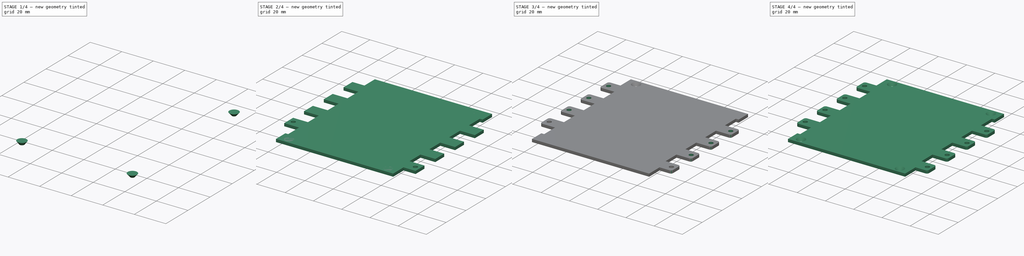
[diagram: build sequence overview — one tinted view per stage of 4, left to right]
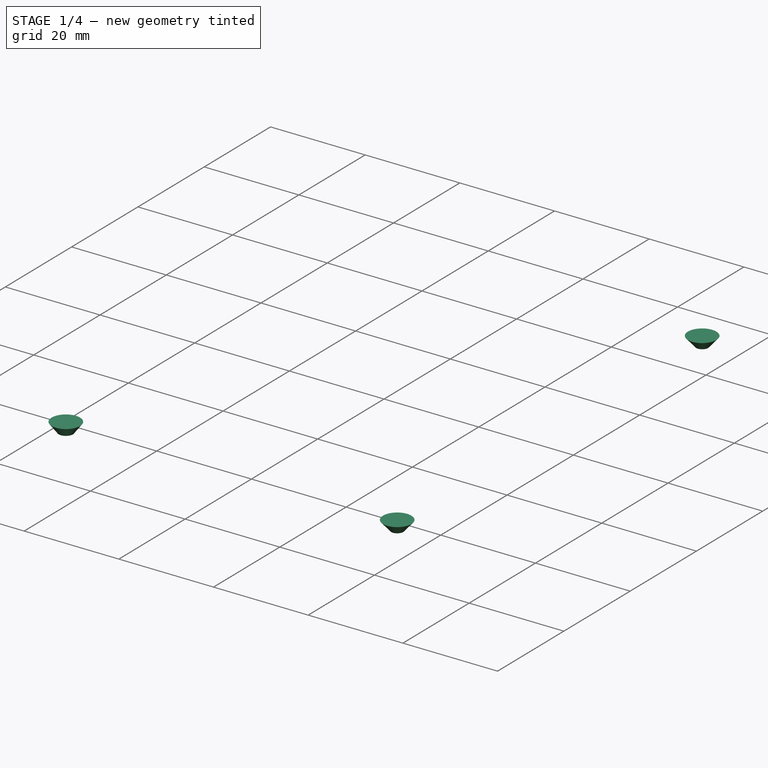
[diagram: stage 1 of 4 — iso view after this stage's code; geometry added in this stage tinted green]
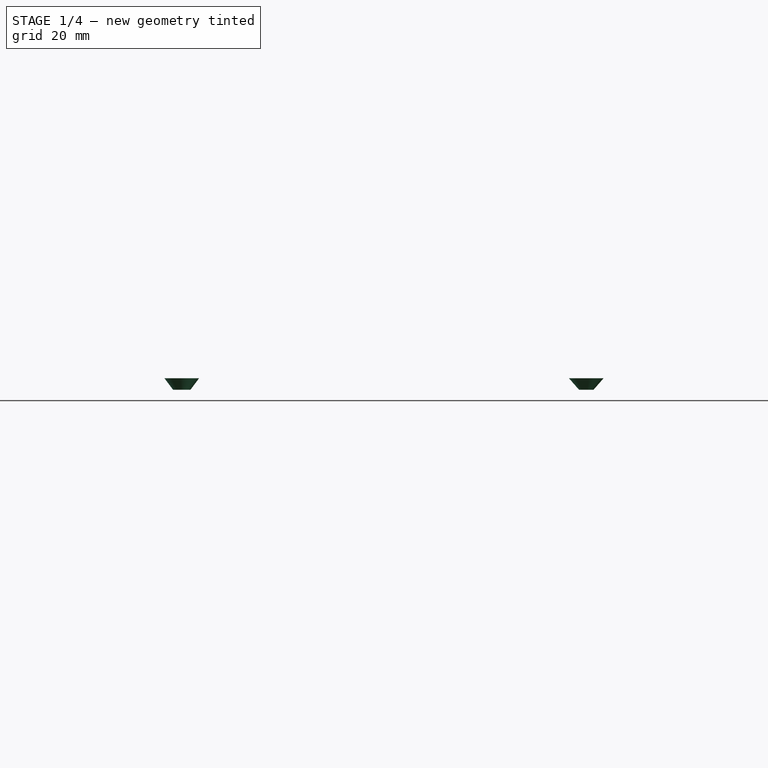
[diagram: stage 1 of 4 — front view after this stage's code; geometry added in this stage tinted green]
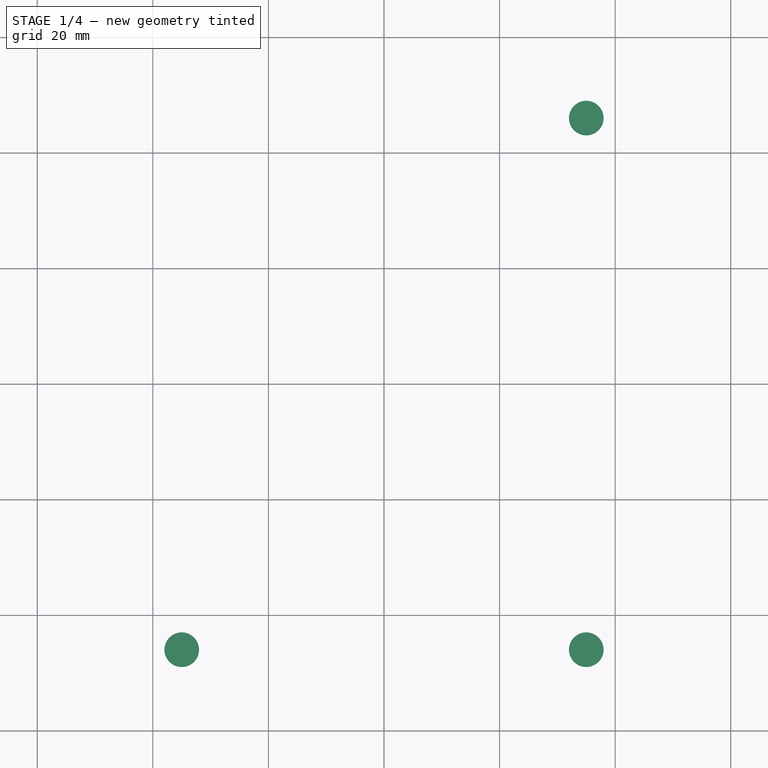
[diagram: stage 1 of 4 — top view after this stage's code; geometry added in this stage tinted green]
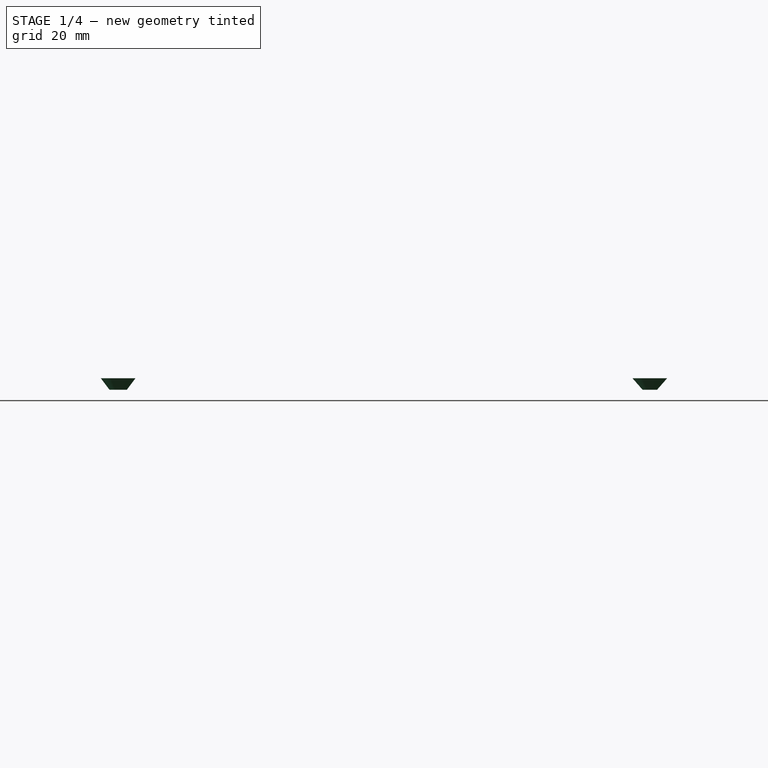
[diagram: stage 1 of 4 — right view after this stage's code; geometry added in this stage tinted green]
FCSTD DOCUMENT  (FreeCAD 0.16R6710 (Git))
Label: pared-fijaciones-tapas
License: All rights reserved
LicenseURL: http://en.wikipedia.org/wiki/All_rights_reserved
objects: Sketcher::SketchObject×10, Part::Loft×4, Part::Cut×4, PartDesign::Pad×1, PartDesign::Pocket×1, PartDesign::LinearPattern×1, Part::Fillet×1
note: 24 computed .brp shape members not serialized (recipe doc carries the construction recipe); baked Part::Feature solids carry a one-line shape summary decoded from their .brp

FEATURE [Sketcher::SketchObject] Sketch004
  sketch-geometry (1):
    g0: Circle CenterX=-35 CenterY=-46 CenterZ=0 NormalX=0 NormalY=0 NormalZ=1 Radius=1.5
  constraints (3):
    c: Radius(g0) = 1.5
    c: DistanceX(g0,g-1) = 35
    c: DistanceY(g0,g-1) = 46
FEATURE [Sketcher::SketchObject] Sketch005
  Placement = pos=(0,0,2) rot=(0,0,1;0rad)
  sketch-geometry (1):
    g0: Circle CenterX=-35 CenterY=-46 CenterZ=0 NormalX=0 NormalY=0 NormalZ=1 Radius=3
  constraints (3):
    c: Radius(g0) = 3
    c: DistanceX(g0,g-1) = 35
    c: DistanceY(g0,g-1) = 46
FEATURE [Part::Loft] Loft001
  Closed = false
  Ruled = true
  Sections = -> [Sketch004,Sketch005]
  Solid = true
FEATURE [Sketcher::SketchObject] Sketch006
  sketch-geometry (1):
    g0: Circle CenterX=35 CenterY=46 CenterZ=0 NormalX=0 NormalY=0 NormalZ=1 Radius=1.25
  constraints (3):
    c: Radius(g0) = 1.25
    c: DistanceX(g-1,g0) = 35
    c: DistanceY(g-1,g0) = 46
FEATURE [Sketcher::SketchObject] Sketch007
  Placement = pos=(0,0,2) rot=(0,0,1;0rad)
  sketch-geometry (1):
    g0: Circle CenterX=35 CenterY=46 CenterZ=0 NormalX=0 NormalY=0 NormalZ=1 Radius=3
  constraints (3):
    c: Radius(g0) = 3
    c: DistanceX(g-1,g0) = 35
    c: DistanceY(g-1,g0) = 46
FEATURE [Part::Loft] Loft002
  Closed = false
  Ruled = true
  Sections = -> [Sketch006,Sketch007]
  Solid = true
FEATURE [Sketcher::SketchObject] Sketch008
  sketch-geometry (1):
    g0: Circle CenterX=35 CenterY=-46 CenterZ=0 NormalX=0 NormalY=0 NormalZ=1 Radius=1.25
  constraints (3):
    c: Radius(g0) = 1.25
    c: DistanceX(g-1,g0) = 35
    c: DistanceY(g0,g-1) = 46
FEATURE [Sketcher::SketchObject] Sketch009
  Placement = pos=(0,0,2) rot=(0,0,1;0rad)
  sketch-geometry (1):
    g0: Circle CenterX=35 CenterY=-46 CenterZ=0 NormalX=0 NormalY=0 NormalZ=1 Radius=3
  constraints (3):
    c: Radius(g0) = 3
    c: DistanceX(g-1,g0) = 35
    c: DistanceY(g0,g-1) = 46
FEATURE [Part::Loft] Loft003
  Closed = false
  Ruled = true
  Sections = -> [Sketch008,Sketch009]
  Solid = true
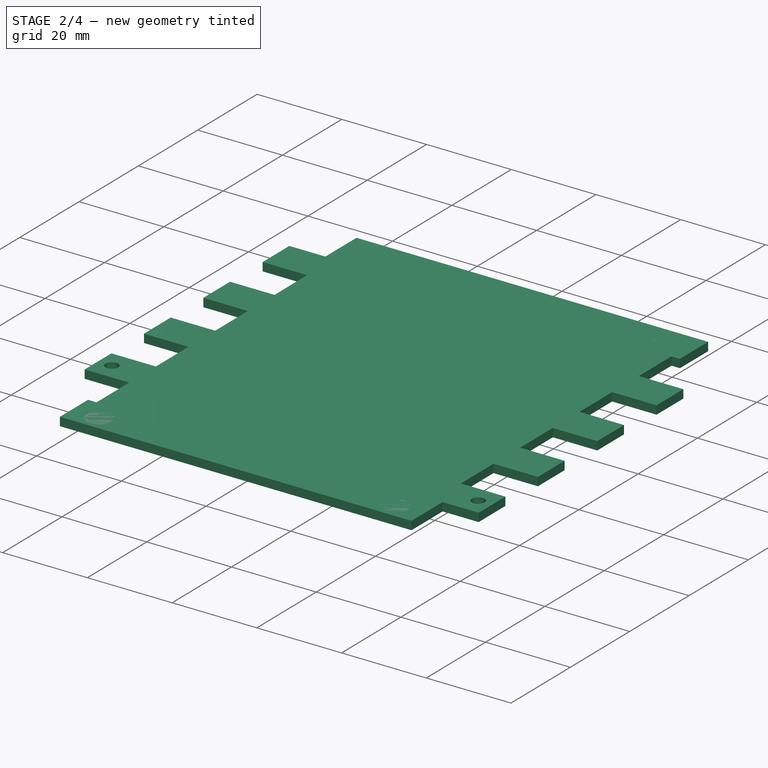
[diagram: stage 2 of 4 — iso view after this stage's code; geometry added in this stage tinted green]
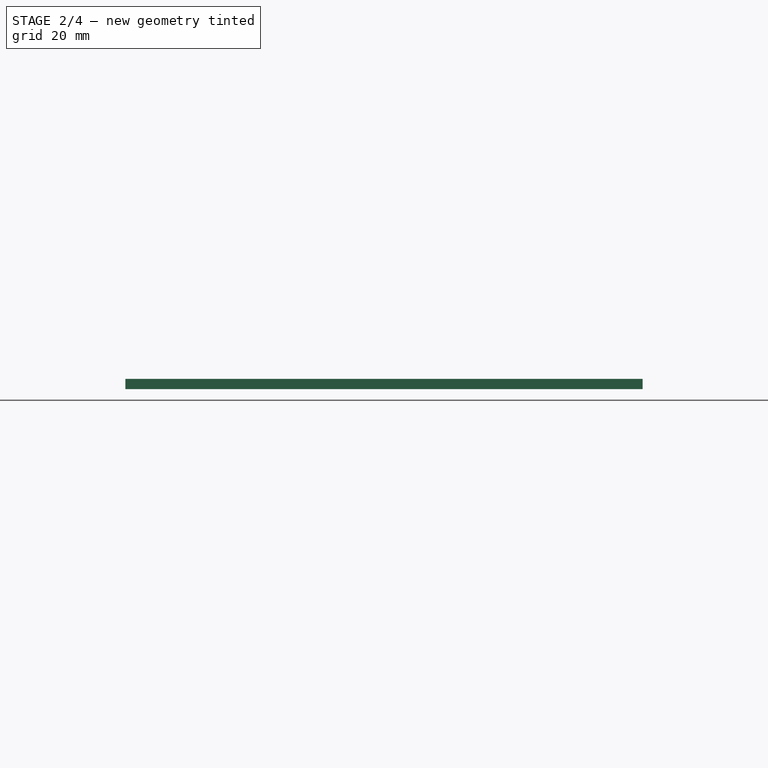
[diagram: stage 2 of 4 — front view after this stage's code; geometry added in this stage tinted green]
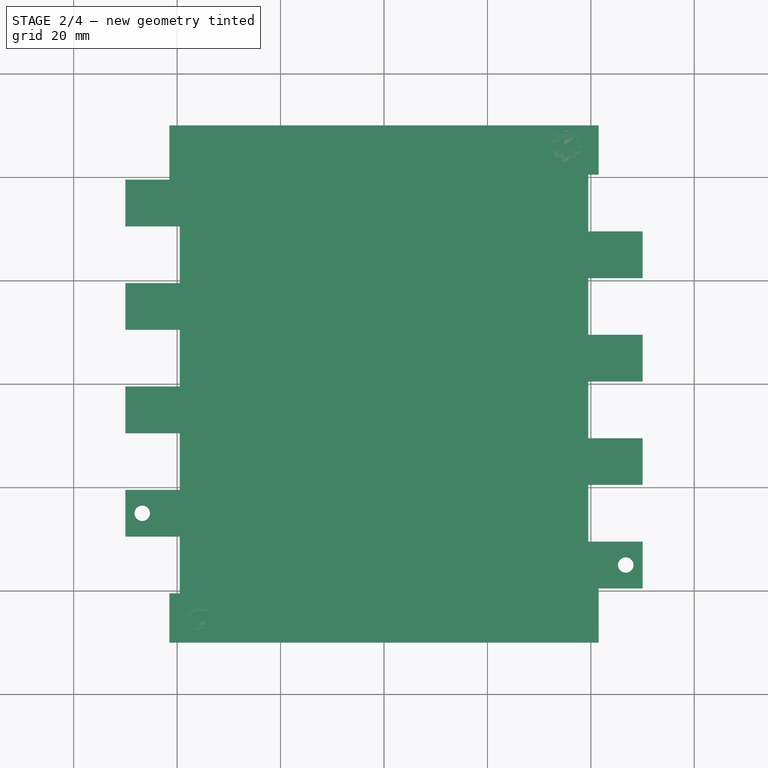
[diagram: stage 2 of 4 — top view after this stage's code; geometry added in this stage tinted green]
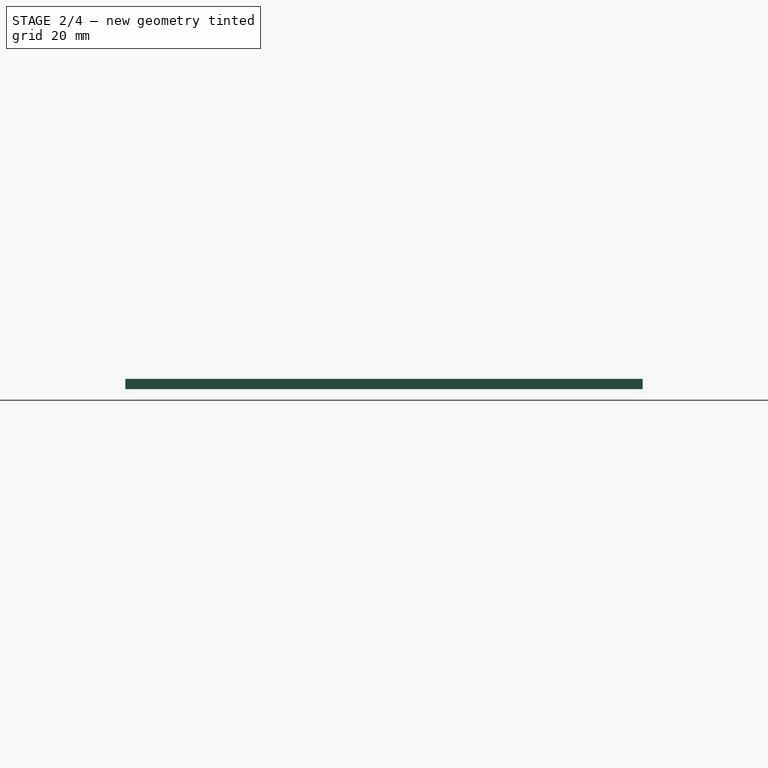
[diagram: stage 2 of 4 — right view after this stage's code; geometry added in this stage tinted green]
FEATURE [Sketcher::SketchObject] Sketch
  sketch-geometry (40):
    g0: LineSegment StartX=-41.5 StartY=-50 StartZ=0 EndX=-41.5 EndY=-40.5 EndZ=0
    g1: LineSegment StartX=-41.5 StartY=-40.5 StartZ=0 EndX=-39.5 EndY=-40.5 EndZ=0
    g2: LineSegment StartX=-39.5 StartY=-40.5 StartZ=0 EndX=-39.5 EndY=-29.5 EndZ=0
    g3: LineSegment StartX=-39.5 StartY=-29.5 StartZ=0 EndX=-50 EndY=-29.5 EndZ=0
    g4: LineSegment StartX=-50 StartY=-29.5 StartZ=0 EndX=-50 EndY=-20.5 EndZ=0
    g5: LineSegment StartX=-50 StartY=-20.5 StartZ=0 EndX=-39.5 EndY=-20.5 EndZ=0
    g6: LineSegment StartX=-39.5 StartY=-20.5 StartZ=0 EndX=-39.5 EndY=-9.5 EndZ=0
    g7: LineSegment StartX=-39.5 StartY=-9.5 StartZ=0 EndX=-50 EndY=-9.5 EndZ=0
    g8: LineSegment StartX=-50 StartY=-9.5 StartZ=0 EndX=-50 EndY=-0.5 EndZ=0
    g9: LineSegment StartX=-50 StartY=-0.5 StartZ=0 EndX=-39.5 EndY=-0.5 EndZ=0
    g10: LineSegment StartX=-39.5 StartY=-0.5 StartZ=0 EndX=-39.5 EndY=10.5 EndZ=0
    g11: LineSegment StartX=-39.5 StartY=10.5 StartZ=0 EndX=-50 EndY=10.5 EndZ=0
    g12: LineSegment StartX=-50 StartY=10.5 StartZ=0 EndX=-50 EndY=19.5 EndZ=0
    g13: LineSegment StartX=-50 StartY=19.5 StartZ=0 EndX=-39.5 EndY=19.5 EndZ=0
    g14: LineSegment StartX=-39.5 StartY=19.5 StartZ=0 EndX=-39.5 EndY=30.5 EndZ=0
    g15: LineSegment StartX=-39.5 StartY=30.5 StartZ=0 EndX=-50 EndY=30.5 EndZ=0
    g16: LineSegment StartX=-50 StartY=30.5 StartZ=0 EndX=-50 EndY=39.5 EndZ=0
    g17: LineSegment StartX=-50 StartY=39.5 StartZ=0 EndX=-41.5 EndY=39.5 EndZ=0
    g18: LineSegment StartX=-41.5 StartY=39.5 StartZ=0 EndX=-41.5 EndY=50 EndZ=0
    g19: LineSegment StartX=41.5 StartY=50 StartZ=0 EndX=41.5 EndY=40.5 EndZ=0
    g20: LineSegment StartX=41.5 StartY=40.5 StartZ=0 EndX=39.5 EndY=40.5 EndZ=0
    g21: LineSegment StartX=39.5 StartY=40.5 StartZ=0 EndX=39.5 EndY=29.5 EndZ=0
    g22: LineSegment StartX=39.5 StartY=29.5 StartZ=0 EndX=50 EndY=29.5 EndZ=0
    g23: LineSegment StartX=50 StartY=29.5 StartZ=0 EndX=50 EndY=20.5 EndZ=0
    g24: LineSegment StartX=50 StartY=20.5 StartZ=0 EndX=39.5 EndY=20.5 EndZ=0
    g25: LineSegment StartX=39.5 StartY=20.5 StartZ=0 EndX=39.5 EndY=9.5 EndZ=0
    g26: LineSegment StartX=39.5 StartY=9.5 StartZ=0 EndX=50 EndY=9.5 EndZ=0
    g27: LineSegment StartX=50 StartY=9.5 StartZ=0 EndX=50 EndY=0.5 EndZ=0
    g28: LineSegment StartX=50 StartY=0.5 StartZ=0 EndX=39.5 EndY=0.5 EndZ=0
    g29: LineSegment StartX=39.5 StartY=0.5 StartZ=0 EndX=39.5 EndY=-10.5 EndZ=0
    g30: LineSegment StartX=39.5 StartY=-10.5 StartZ=0 EndX=50 EndY=-10.5 EndZ=0
    g31: LineSegment StartX=50 StartY=-10.5 StartZ=0 EndX=50 EndY=-19.5 EndZ=0
    g32: LineSegment StartX=50 StartY=-19.5 StartZ=0 EndX=39.5 EndY=-19.5 EndZ=0
    g33: LineSegment StartX=39.5 StartY=-19.5 StartZ=0 EndX=39.5 EndY=-30.5 EndZ=0
    g34: LineSegment StartX=39.5 StartY=-30.5 StartZ=0 EndX=50 EndY=-30.5 EndZ=0
    g35: LineSegment StartX=50 StartY=-30.5 StartZ=0 EndX=50 EndY=-39.5 EndZ=0
    g36: LineSegment StartX=50 StartY=-39.5 StartZ=0 EndX=41.5 EndY=-39.5 EndZ=0
    g37: LineSegment StartX=41.5 StartY=-39.5 StartZ=0 EndX=41.5 EndY=-50 EndZ=0
    g38: LineSegment StartX=-41.5 StartY=-50 StartZ=0 EndX=41.5 EndY=-50 EndZ=0
    g39: LineSegment StartX=-41.5 StartY=50 StartZ=0 EndX=41.5 EndY=50 EndZ=0
  constraints (122):
    c: Vertical(g0)
    c: Coincident(g0,g1)
    c: Coincident(g1,g2)
    c: Vertical(g2)
    c: Coincident(g2,g3)
    c: Horizontal(g3)
    c: Coincident(g3,g4)
    c: Vertical(g4)
    c: Coincident(g4,g5)
    c: Horizontal(g5)
    c: Coincident(g5,g6)
    c: Vertical(g6)
    c: Coincident(g6,g7)
    c: Horizontal(g7)
    c: Coincident(g7,g8)
    c: Vertical(g8)
    c: Coincident(g8,g9)
    c: Horizontal(g9)
    c: Coincident(g9,g10)
    c: Vertical(g10)
    c: Coincident(g10,g11)
    c: Horizontal(g11)
    c: Coincident(g11,g12)
    c: Vertical(g12)
    c: Coincident(g12,g13)
    c: Horizontal(g13)
    c: Coincident(g13,g14)
    c: Vertical(g14)
    c: Coincident(g14,g15)
    c: Horizontal(g15)
    c: Coincident(g15,g16)
    c: Vertical(g16)
    c: Coincident(g16,g17)
    c: Horizontal(g17)
    c: Coincident(g17,g18)
    c: Vertical(g18)
    c: Equal(g2,g6)
    c: Equal(g6,g10)
    c: Equal(g10,g14)
    c: Horizontal(g1)
    c: DistanceY(g2,g2) = 11
    c: DistanceX(g1,g1) = 2
    c: DistanceY(g0,g0) = 9.5
    c: Equal(g4,g8)
    c: Equal(g8,g12)
    c: Equal(g12,g16)
    c: DistanceY(g4,g4) = 9
    c: Equal(g3,g5)
    c: Equal(g5,g7)
    c: Equal(g7,g9)
    c: Equal(g9,g11)
    c: Equal(g11,g13)
    c: Equal(g13,g15)
    c: DistanceX(g3,g3) = 10.5
    c: DistanceX(g17,g17) = 8.5
    c: DistanceY(g18,g18) = 10.5
    c: Vertical(g19)
    c: Coincident(g19,g20)
    c: Coincident(g20,g21)
    c: Vertical(g21)
    c: Coincident(g21,g22)
    c: Horizontal(g22)
    c: Coincident(g22,g23)
    c: Vertical(g23)
    c: Coincident(g23,g24)
    c: Horizontal(g24)
    c: Coincident(g24,g25)
    c: Vertical(g25)
    c: Coincident(g25,g26)
    c: Horizontal(g26)
    c: Coincident(g26,g27)
    c: Vertical(g27)
    c: Coincident(g27,g28)
    c: Horizontal(g28)
    c: Coincident(g28,g29)
    c: Vertical(g29)
    c: Coincident(g29,g30)
    c: Horizontal(g30)
    c: Coincident(g30,g31)
    c: Vertical(g31)
    c: Coincident(g31,g32)
    c: Horizontal(g32)
    c: Coincident(g32,g33)
    c: Vertical(g33)
    c: Coincident(g33,g34)
    c: Horizontal(g34)
    c: Coincident(g34,g35)
    c: Vertical(g35)
    c: Coincident(g35,g36)
    c: Horizontal(g36)
    c: Coincident(g36,g37)
    c: Vertical(g37)
    c: Equal(g21,g25)
    c: Equal(g25,g29)
    c: Equal(g29,g33)
    c: Horizontal(g20)
    c: Equal(g23,g27)
    c: Equal(g27,g31)
    c: Equal(g31,g35)
    c: Equal(g22,g24)
    c: Equal(g24,g26)
    c: Equal(g26,g28)
    c: Equal(g28,g30)
    c: Equal(g30,g32)
    c: Equal(g32,g34)
    c: DistanceY(g37,g37) = 10.5
    c: DistanceX(g36,g36) = 8.5
    c: DistanceY(g35,g35) = 9
    c: DistanceX(g34,g34) = 10.5
    c: DistanceY(g19,g19) = 9.5
    c: DistanceX(g20,g20) = 2
    c: DistanceY(g33,g33) = 11
    c: Horizontal(g38)
    c: Horizontal(g39)
    c: Coincident(g39,g19)
    c: Coincident(g39,g18)
    c: Coincident(g38,g37)
    c: Coincident(g38,g0)
    c: DistanceX(g38,g38) = 83
    c: Equal(g39,g38)
    c: Symmetric(g0,g37,g-2)
    c: Symmetric(g37,g19,g-1)
FEATURE [PartDesign::Pad] Pad
  Length = 2
  Length2 = 100
  Sketch = -> Sketch
  Type = 0
FEATURE [Sketcher::SketchObject] Sketch001
  ExternalGeometry = -> [Pad]
  Placement = pos=(0,0,2) rot=(0,0,1;0rad)
  Support = -> Pad [Face42]
  sketch-geometry (2):
    g0: Circle CenterX=-46.75 CenterY=-25 CenterZ=0 NormalX=0 NormalY=0 NormalZ=1 Radius=1.5
    g1: Circle CenterX=46.75 CenterY=-35 CenterZ=0 NormalX=0 NormalY=0 NormalZ=1 Radius=1.5
  constraints (6):
    c: Radius(g0) = 1.5
    c: DistanceY(g-3,g0) = 4.5
    c: DistanceX(g-3,g0) = 3.25
    c: Equal(g1,g0)
    c: DistanceY(g-4,g1) = 4.5
    c: DistanceX(g1,g-4) = 3.25
FEATURE [PartDesign::Pocket] Pocket
  Length = 5
  Sketch = -> Sketch001
  Type = 1
FEATURE [Sketcher::SketchObject] Sketch002
  sketch-geometry (1):
    g0: Circle CenterX=-35 CenterY=46 CenterZ=0 NormalX=0 NormalY=0 NormalZ=1 Radius=1.5
  constraints (3):
    c: DistanceX(g0,g-1) = 35
    c: DistanceY(g-1,g0) = 46
    c: Radius(g0) = 1.5
FEATURE [Sketcher::SketchObject] Sketch003
  Placement = pos=(0,0,2) rot=(0,0,1;0rad)
  sketch-geometry (1):
    g0: Circle CenterX=-35 CenterY=46 CenterZ=0 NormalX=0 NormalY=0 NormalZ=1 Radius=3
  constraints (3):
    c: Radius(g0) = 3
    c: DistanceX(g0,g-1) = 35
    c: DistanceY(g-1,g0) = 46
FEATURE [Part::Loft] Loft
  Closed = false
  Ruled = true
  Sections = -> [Sketch002,Sketch003]
  Solid = true
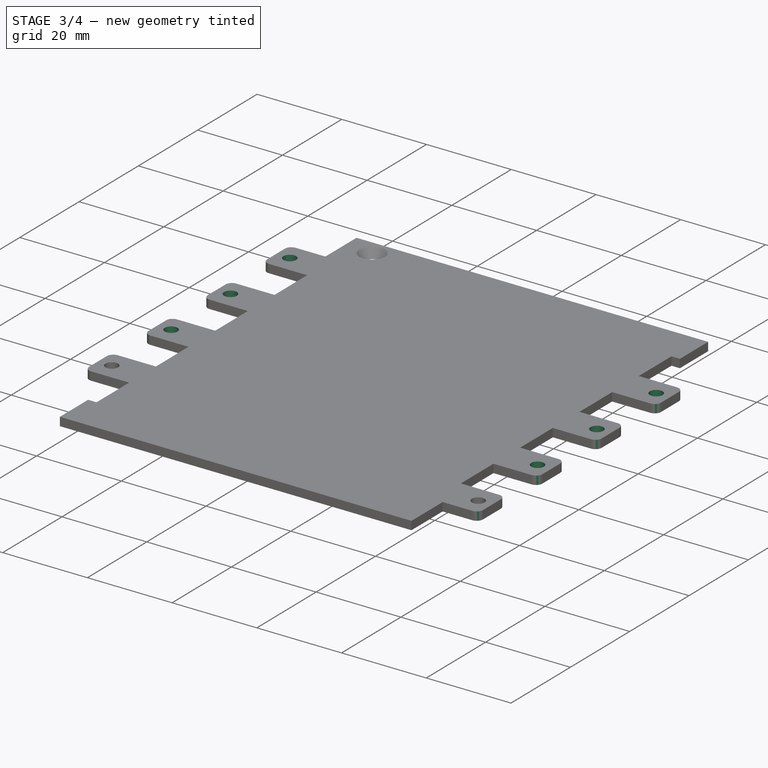
[diagram: stage 3 of 4 — iso view after this stage's code; geometry added in this stage tinted green]
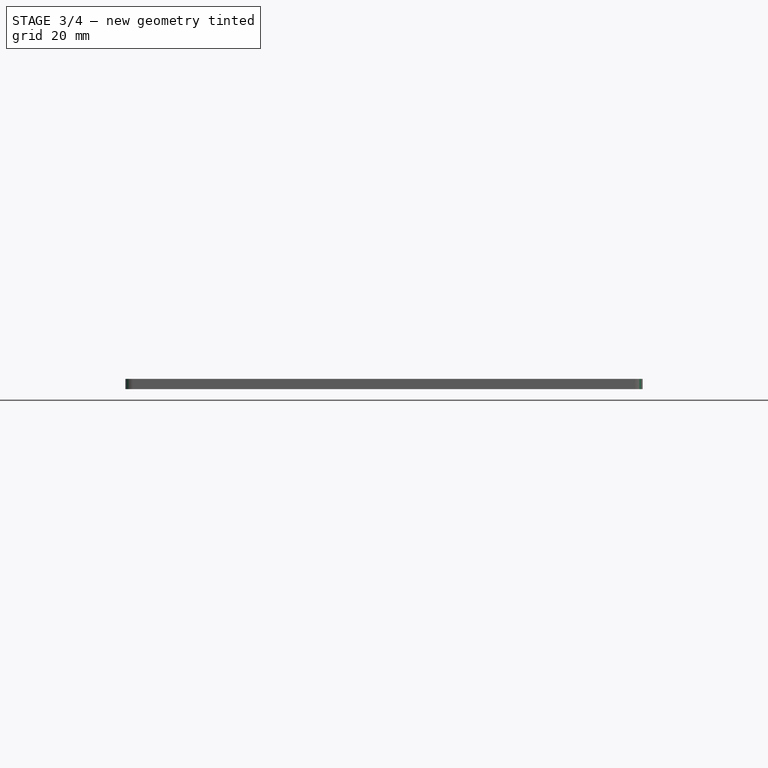
[diagram: stage 3 of 4 — front view after this stage's code; geometry added in this stage tinted green]
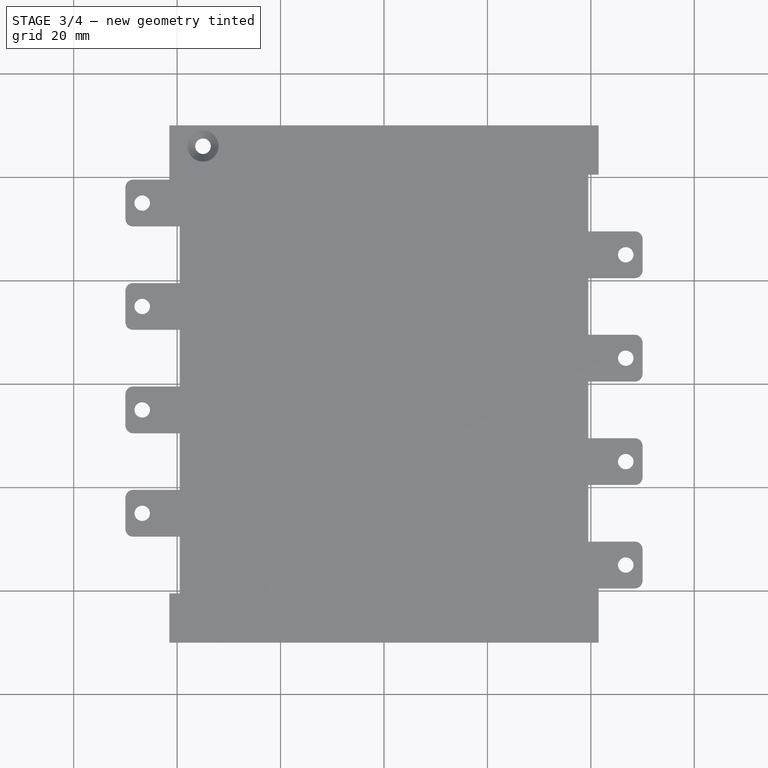
[diagram: stage 3 of 4 — top view after this stage's code; geometry added in this stage tinted green]
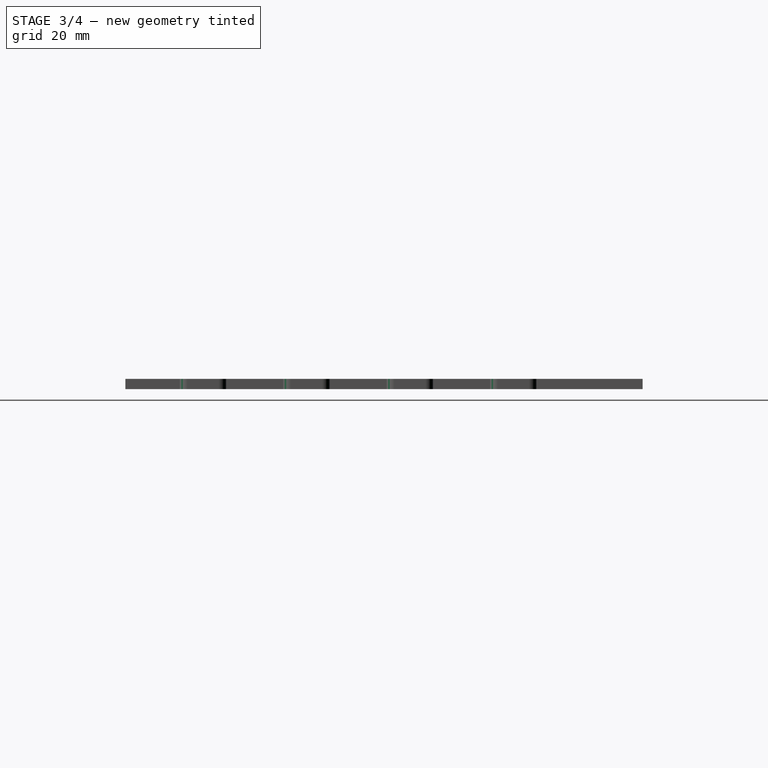
[diagram: stage 3 of 4 — right view after this stage's code; geometry added in this stage tinted green]
FEATURE [PartDesign::LinearPattern] LinearPattern
  Direction = -> Sketch001 [V_Axis]
  Length = 60
  Occurrences = 4
  Originals = -> [Pocket]
FEATURE [Part::Fillet] Fillet
  Base = -> LinearPattern
  Edges = 16 edges r=1.5: [Edge103,Edge104,Edge105,Edge106,Edge111,Edge112,Edge113,Edge114,Edge119,Edge120,Edge121,Edge122,Edge127,Edge128,Edge129,Edge130]
FEATURE [Part::Cut] Cut
  Base = -> Fillet
  Tool = -> Loft
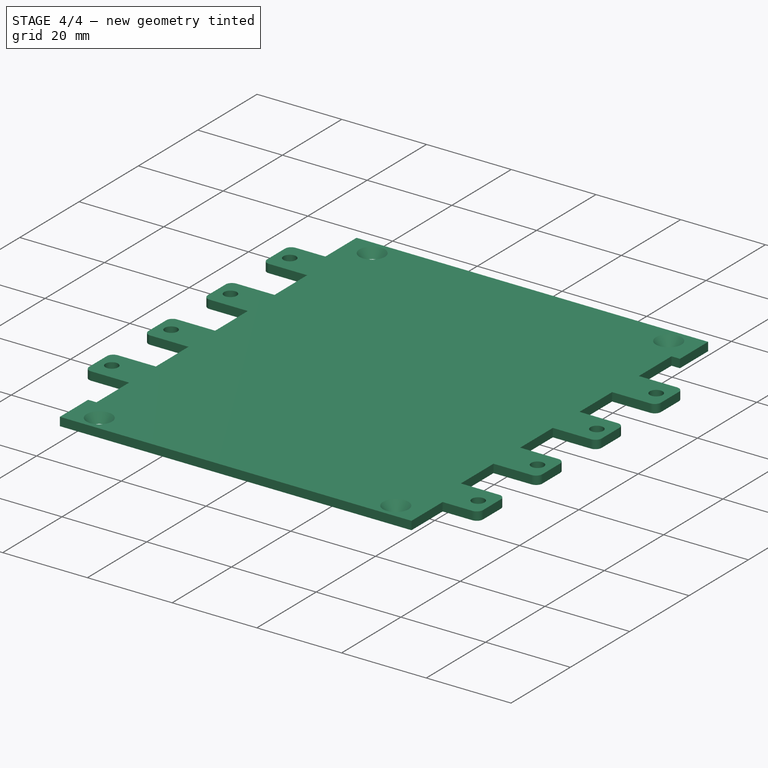
[diagram: stage 4 of 4 — iso view after this stage's code; geometry added in this stage tinted green]
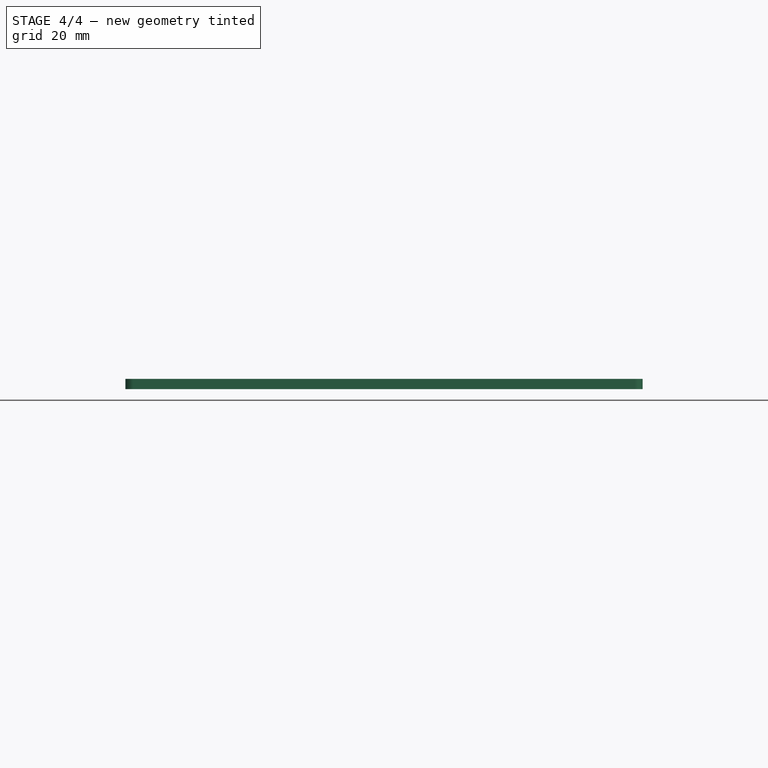
[diagram: stage 4 of 4 — front view after this stage's code; geometry added in this stage tinted green]
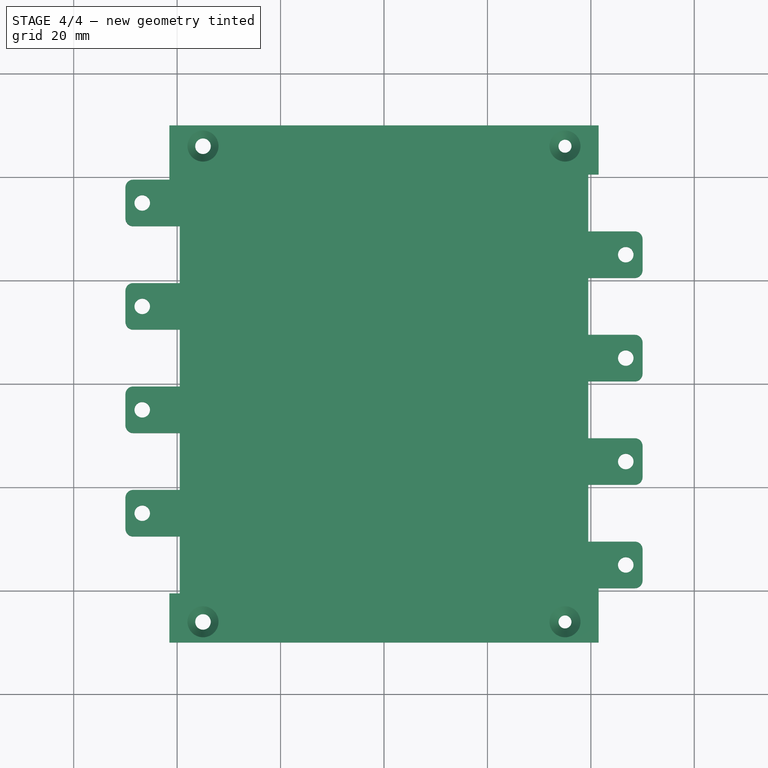
[diagram: stage 4 of 4 — top view after this stage's code; geometry added in this stage tinted green]
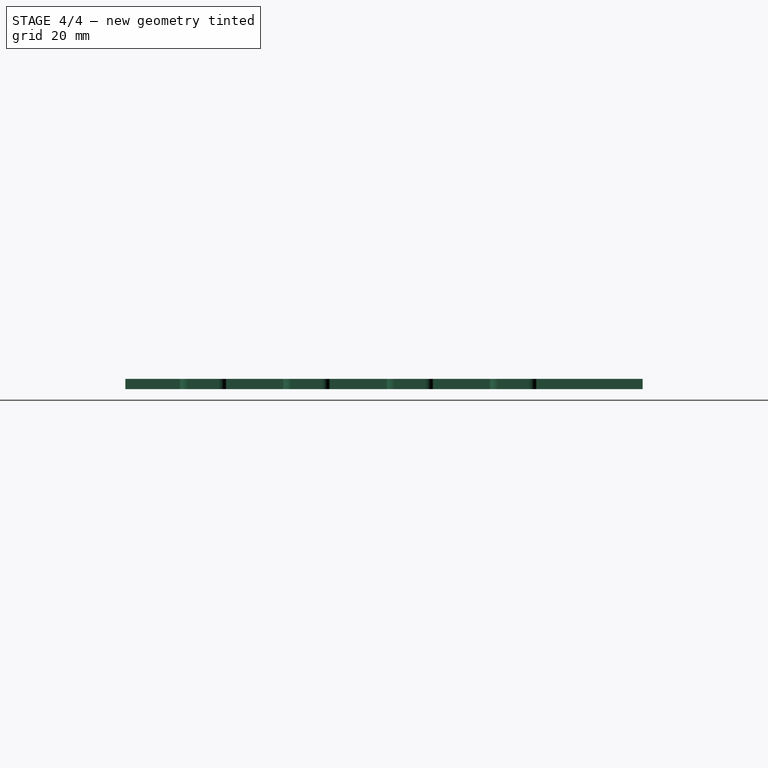
[diagram: stage 4 of 4 — right view after this stage's code; geometry added in this stage tinted green]
FEATURE [Part::Cut] Cut001
  Base = -> Cut
  Tool = -> Loft001
FEATURE [Part::Cut] Cut002
  Base = -> Cut001
  Tool = -> Loft002
FEATURE [Part::Cut] Cut003
  Base = -> Cut002
  Tool = -> Loft003
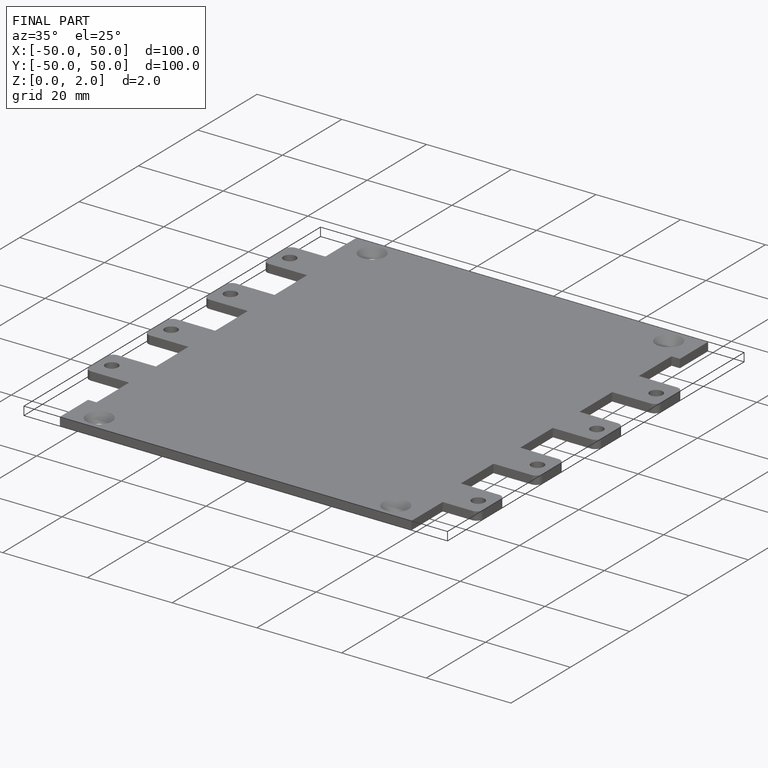
[diagram: finished part — iso view with bounding-box wireframe]
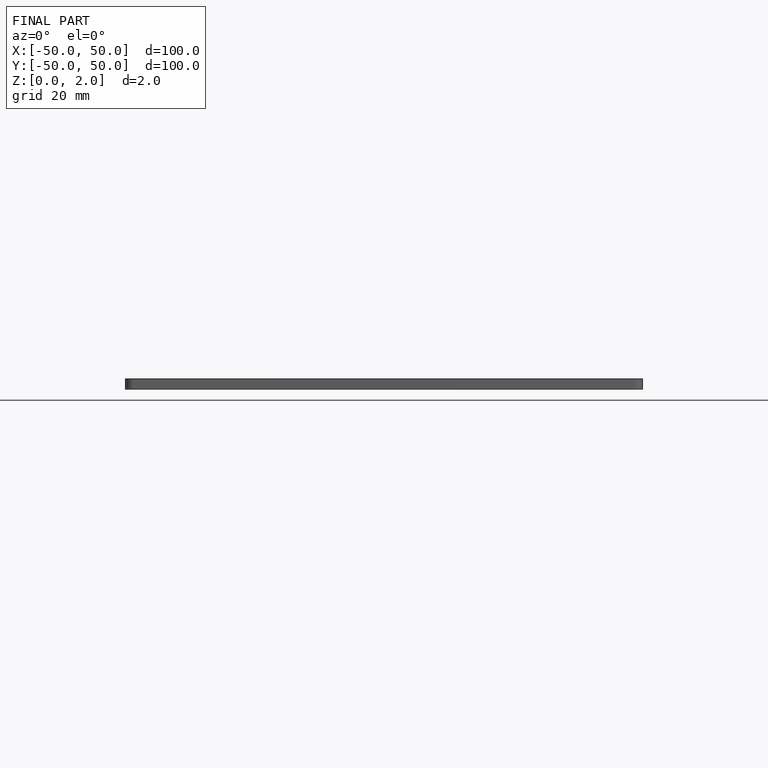
[diagram: finished part — front view with bounding-box wireframe]
